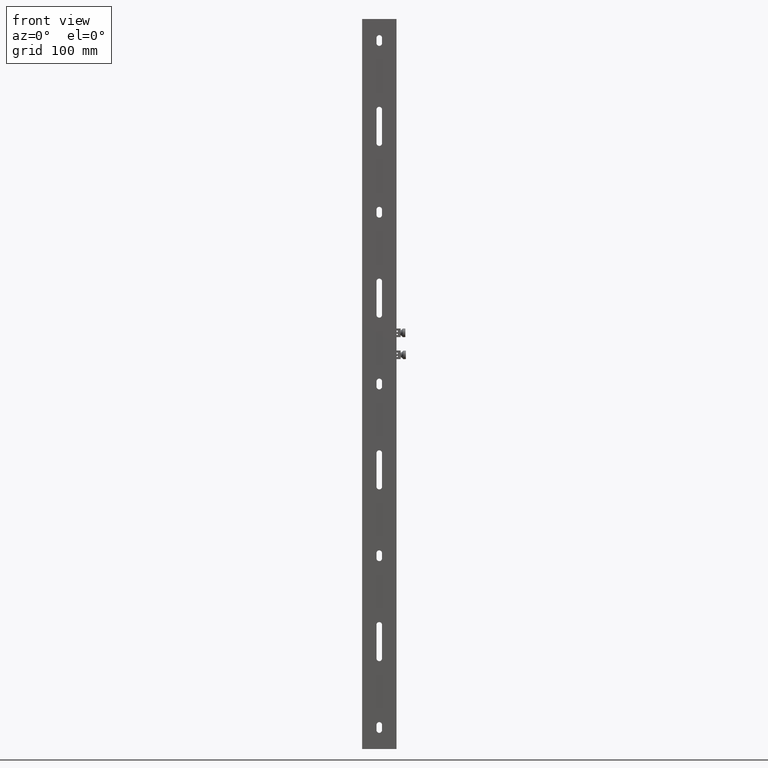
[diagram: clean part render]
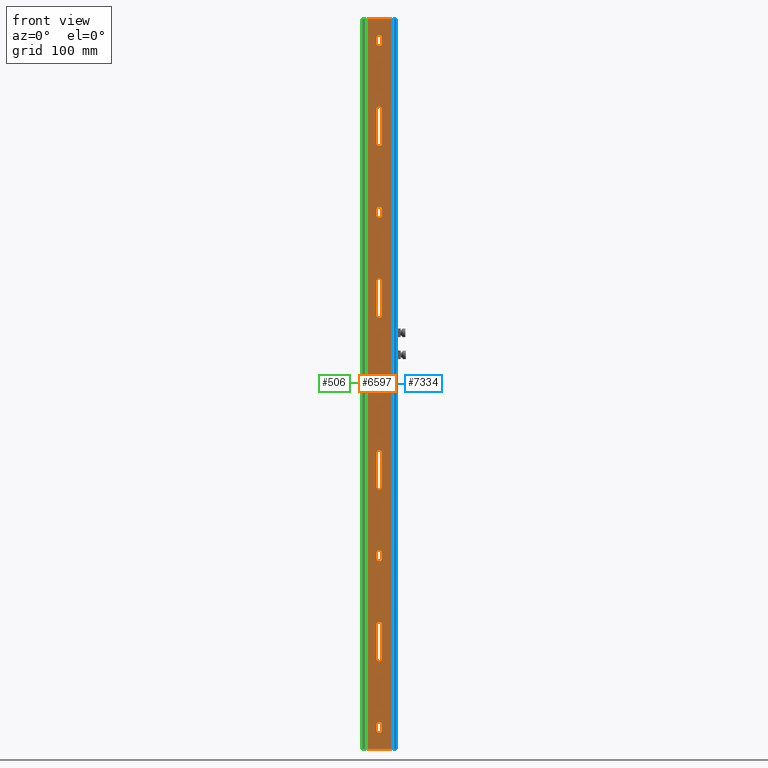
[diagram: same view with three faces highlighted in distinct colors, each labeled with its STEP entity id]
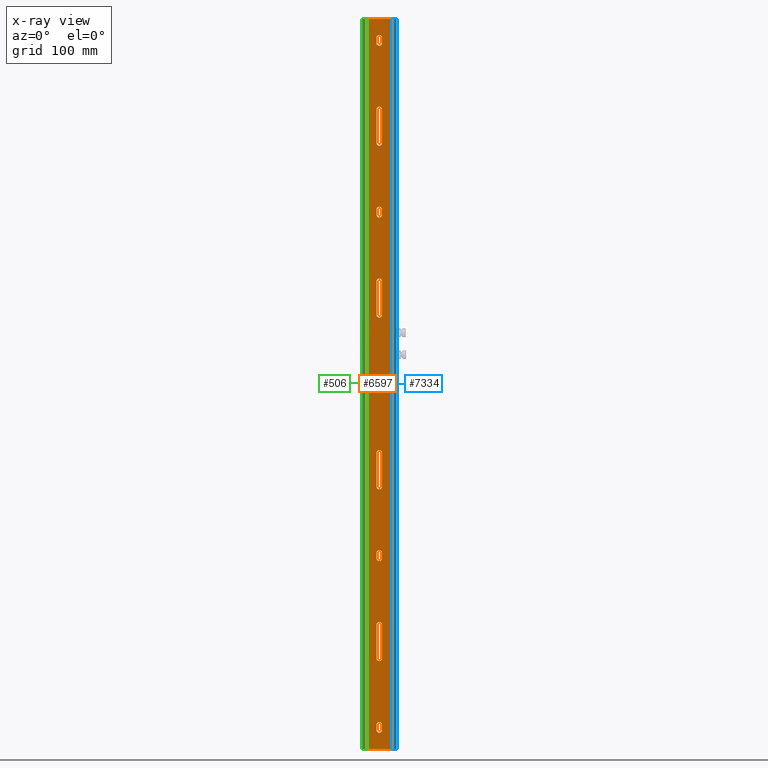
[diagram: x-ray of the same camera — body ghosted, the three highlighted faces saturated]
A machine part, front view with three faces highlighted in distinct colors.
The next image is the same camera in x-ray (body ghosted, the three faces saturated) — at least one of them is partly hidden behind the body in this view.
Their STEP definitions:

[orange] entity #6597 — the highlighted planar face has unit normal (0, -1, 0).
#52 = CARTESIAN_POINT ( 'NONE',  ( 5.510910596163088569E-16, 3.000000000000000000, 5.999999999999996447 ) ) ;
#53 = ORIENTED_EDGE ( 'NONE', *, *, #5482, .F. ) ;
#64 = LINE ( 'NONE', #6114, #5922 ) ;
#102 = DIRECTION ( 'NONE',  ( -1.836970198721027962E-16, -1.000000000000000000, 0.000000000000000000 ) ) ;
#108 = ORIENTED_EDGE ( 'NONE', *, *, #6755, .F. ) ;
#112 = VERTEX_POINT ( 'NONE', #1208 ) ;
#116 = DIRECTION ( 'NONE',  ( -0.000000000000000000, 0.000000000000000000, 1.000000000000000000 ) ) ;
#120 = DIRECTION ( 'NONE',  ( 1.000000000000000000, 0.000000000000000000, 0.000000000000000000 ) ) ;
#180 = EDGE_CURVE ( 'NONE', #2594, #6931, #1267, .T. ) ;
#184 = VERTEX_POINT ( 'NONE', #5951 ) ;
#216 = VERTEX_POINT ( 'NONE', #1248 ) ;
#222 = CARTESIAN_POINT ( 'NONE',  ( 3.249999999999998668, 319.5000000000000000, 5.999999999999996447 ) ) ;
#238 = VERTEX_POINT ( 'NONE', #4727 ) ;
#243 = VERTEX_POINT ( 'NONE', #4689 ) ;
#245 = VECTOR ( 'NONE', #5258, 1000.000000000000000 ) ;
#471 = CARTESIAN_POINT ( 'NONE',  ( -3.250000000000071498, 5.970153145843472579E-16, 5.999999999999996447 ) ) ;
#492 = ORIENTED_EDGE ( 'NONE', *, *, #6791, .T. ) ;
#502 = ORIENTED_EDGE ( 'NONE', *, *, #1505, .F. ) ;
#533 = VERTEX_POINT ( 'NONE', #3122 ) ;
#537 = VERTEX_POINT ( 'NONE', #8474 ) ;
#557 = FACE_BOUND ( 'NONE', #3112, .T. ) ;
#603 = DIRECTION ( 'NONE',  ( -1.836970198721027962E-16, -1.000000000000000000, 0.000000000000000000 ) ) ;
#617 = LINE ( 'NONE', #3301, #2979 ) ;
#635 = EDGE_LOOP ( 'NONE', ( #4002, #7270, #492, #2197 ) ) ;
#638 = DIRECTION ( 'NONE',  ( -1.836970198721027962E-16, -1.000000000000000000, 0.000000000000000000 ) ) ;
#646 = DIRECTION ( 'NONE',  ( 1.000000000000000000, 0.000000000000000000, 0.000000000000000000 ) ) ;
#653 = DIRECTION ( 'NONE',  ( 1.000000000000000000, 0.000000000000000000, 0.000000000000000000 ) ) ;
#668 = CIRCLE ( 'NONE', #2784, 3.249999999999997780 ) ;
#674 = ORIENTED_EDGE ( 'NONE', *, *, #3057, .F. ) ;
#696 = DIRECTION ( 'NONE',  ( -0.000000000000000000, 0.000000000000000000, 1.000000000000000000 ) ) ;
#762 = AXIS2_PLACEMENT_3D ( 'NONE', #5149, #974, #7167 ) ;
#774 = VERTEX_POINT ( 'NONE', #3765 ) ;
#797 = DIRECTION ( 'NONE',  ( -1.836970198721027222E-16, -1.000000000000000000, 0.000000000000000000 ) ) ;
#815 = VECTOR ( 'NONE', #603, 1000.000000000000000 ) ;
#831 = EDGE_CURVE ( 'NONE', #4406, #1709, #668, .T. ) ;
#872 = CARTESIAN_POINT ( 'NONE',  ( -3.250000000000002665, -319.5000000000000000, 5.999999999999996447 ) ) ;
#925 = AXIS2_PLACEMENT_3D ( 'NONE', #8006, #7354, #4555 ) ;
#940 = CARTESIAN_POINT ( 'NONE',  ( -5.510910596163088569E-16, -403.0000000000000000, 5.999999999999996447 ) ) ;
#951 = ORIENTED_EDGE ( 'NONE', *, *, #5408, .F. ) ;
#964 = EDGE_CURVE ( 'NONE', #8024, #4916, #6677, .T. ) ;
#974 = DIRECTION ( 'NONE',  ( -0.000000000000000000, 0.000000000000000000, 1.000000000000000000 ) ) ;
#1005 = CARTESIAN_POINT ( 'NONE',  ( -3.250000000000001332, 80.50000000000001421, 5.999999999999996447 ) ) ;
#1007 = LINE ( 'NONE', #4260, #7865 ) ;
#1024 = CARTESIAN_POINT ( 'NONE',  ( -3.249999999999997335, -397.0000000000000000, 5.999999999999996447 ) ) ;
#1040 = VECTOR ( 'NONE', #5283, 1000.000000000000000 ) ;
#1054 = VECTOR ( 'NONE', #638, 1000.000000000000000 ) ;
#1058 = FACE_BOUND ( 'NONE', #7983, .T. ) ;
#1060 = ORIENTED_EDGE ( 'NONE', *, *, #3414, .T. ) ;
#1083 = VERTEX_POINT ( 'NONE', #5355 ) ;
#1125 = VERTEX_POINT ( 'NONE', #872 ) ;
#1169 = ORIENTED_EDGE ( 'NONE', *, *, #6448, .F. ) ;
#1208 = CARTESIAN_POINT ( 'NONE',  ( 3.249999999999996003, 397.0000000000000000, 5.999999999999996447 ) ) ;
#1222 = DIRECTION ( 'NONE',  ( -0.000000000000000000, 0.000000000000000000, 1.000000000000000000 ) ) ;
#1245 = CARTESIAN_POINT ( 'NONE',  ( 3.249999999999996447, -203.0000000000000000, 5.999999999999996447 ) ) ;
#1248 = CARTESIAN_POINT ( 'NONE',  ( -3.249999999999998224, -403.0000000000000000, 5.999999999999996447 ) ) ;
#1267 = CIRCLE ( 'NONE', #7565, 3.249999999999997780 ) ;
#1317 = CARTESIAN_POINT ( 'NONE',  ( 3.250000000000070166, -5.970153145843469621E-16, 5.999999999999996447 ) ) ;
#1329 = DIRECTION ( 'NONE',  ( -1.000000000000000000, -0.000000000000000000, -0.000000000000000000 ) ) ;
#1341 = CIRCLE ( 'NONE', #925, 3.249999999999997780 ) ;
#1343 = ORIENTED_EDGE ( 'NONE', *, *, #4219, .T. ) ;
#1366 = DIRECTION ( 'NONE',  ( -1.836970198721029934E-16, -1.000000000000000000, 0.000000000000000000 ) ) ;
#1383 = DIRECTION ( 'NONE',  ( -0.000000000000000000, 0.000000000000000000, 1.000000000000000000 ) ) ;
#1459 = DIRECTION ( 'NONE',  ( -0.000000000000000000, 0.000000000000000000, 1.000000000000000000 ) ) ;
#1499 = LINE ( 'NONE', #7426, #7663 ) ;
#1501 = CARTESIAN_POINT ( 'NONE',  ( 3.249999999999998224, -197.0000000000000000, 5.999999999999996447 ) ) ;
#1505 = EDGE_CURVE ( 'NONE', #1663, #1083, #3182, .T. ) ;
#1551 = VERTEX_POINT ( 'NONE', #6921 ) ;
#1557 = DIRECTION ( 'NONE',  ( 1.000000000000000000, 0.000000000000000000, 0.000000000000000000 ) ) ;
#1564 = VERTEX_POINT ( 'NONE', #7527 ) ;
#1565 = CIRCLE ( 'NONE', #7734, 3.249999999999997780 ) ;
#1579 = AXIS2_PLACEMENT_3D ( 'NONE', #6692, #4095, #8653 ) ;
#1658 = CARTESIAN_POINT ( 'NONE',  ( 3.250000000000001332, -80.50000000000001421, 5.999999999999996447 ) ) ;
#1663 = VERTEX_POINT ( 'NONE', #8321 ) ;
#1709 = VERTEX_POINT ( 'NONE', #5495 ) ;
#1711 = CIRCLE ( 'NONE', #4533, 3.249999999999997780 ) ;
#1721 = DIRECTION ( 'NONE',  ( 1.000000000000000000, 0.000000000000000000, 0.000000000000000000 ) ) ;
#1737 = EDGE_CURVE ( 'NONE', #4972, #238, #4351, .T. ) ;
#1755 = FACE_BOUND ( 'NONE', #5077, .T. ) ;
#1759 = EDGE_CURVE ( 'NONE', #537, #4838, #3224, .T. ) ;
#1795 = DIRECTION ( 'NONE',  ( -0.000000000000000000, 0.000000000000000000, 1.000000000000000000 ) ) ;
#1819 = AXIS2_PLACEMENT_3D ( 'NONE', #6122, #116, #8123 ) ;
#1883 = ORIENTED_EDGE ( 'NONE', *, *, #3586, .F. ) ;
#1931 = VERTEX_POINT ( 'NONE', #5166 ) ;
#1942 = LINE ( 'NONE', #6087, #4977 ) ;
#2037 = CIRCLE ( 'NONE', #2171, 3.249999999999997780 ) ;
#2171 = AXIS2_PLACEMENT_3D ( 'NONE', #3668, #8156, #4830 ) ;
#2175 = VERTEX_POINT ( 'NONE', #6308 ) ;
#2184 = EDGE_CURVE ( 'NONE', #7698, #7010, #4782, .T. ) ;
#2197 = ORIENTED_EDGE ( 'NONE', *, *, #2507, .F. ) ;
#2281 = LINE ( 'NONE', #4338, #2969 ) ;
#2341 = LINE ( 'NONE', #3825, #7872 ) ;
#2359 = CARTESIAN_POINT ( 'NONE',  ( 3.249999999999996447, -403.0000000000000000, 5.999999999999996447 ) ) ;
#2363 = ORIENTED_EDGE ( 'NONE', *, *, #1759, .F. ) ;
#2424 = CARTESIAN_POINT ( 'NONE',  ( 3.249999999999996447, -5.970153145843339459E-16, 5.999999999999996447 ) ) ;
#2504 = CARTESIAN_POINT ( 'NONE',  ( -3.249999999999998224, -2.999999999999999556, 5.999999999999996447 ) ) ;
#2507 = EDGE_CURVE ( 'NONE', #6042, #112, #3724, .T. ) ;
#2519 = ORIENTED_EDGE ( 'NONE', *, *, #3192, .F. ) ;
#2546 = DIRECTION ( 'NONE',  ( 0.000000000000000000, -1.000000000000000000, 0.000000000000000000 ) ) ;
#2548 = FACE_BOUND ( 'NONE', #635, .T. ) ;
#2566 = EDGE_CURVE ( 'NONE', #774, #4705, #1341, .T. ) ;
#2571 = DIRECTION ( 'NONE',  ( -0.000000000000000000, 0.000000000000000000, 1.000000000000000000 ) ) ;
#2594 = VERTEX_POINT ( 'NONE', #6699 ) ;
#2597 = FACE_BOUND ( 'NONE', #7355, .T. ) ;
#2654 = DIRECTION ( 'NONE',  ( -1.836970198721027222E-16, -1.000000000000000000, 0.000000000000000000 ) ) ;
#2754 = VERTEX_POINT ( 'NONE', #4357 ) ;
#2784 = AXIS2_PLACEMENT_3D ( 'NONE', #5674, #6336, #7645 ) ;
#2831 = CARTESIAN_POINT ( 'NONE',  ( -14.99999999999999822, 425.0000000000000000, 5.999999999999996447 ) ) ;
#2884 = VERTEX_POINT ( 'NONE', #2504 ) ;
#2920 = DIRECTION ( 'NONE',  ( 1.000000000000000000, 0.000000000000000000, 0.000000000000000000 ) ) ;
#2969 = VECTOR ( 'NONE', #6899, 1000.000000000000000 ) ;
#2979 = VECTOR ( 'NONE', #4722, 1000.000000000000000 ) ;
#3057 = EDGE_CURVE ( 'NONE', #4705, #4972, #1499, .T. ) ;
#3066 = ORIENTED_EDGE ( 'NONE', *, *, #1737, .F. ) ;
#3078 = EDGE_CURVE ( 'NONE', #774, #238, #6783, .T. ) ;
#3112 = EDGE_LOOP ( 'NONE', ( #5344, #6904, #3066, #674 ) ) ;
#3122 = CARTESIAN_POINT ( 'NONE',  ( -3.249999999999996447, -280.5000000000000000, 5.999999999999996447 ) ) ;
#3153 = DIRECTION ( 'NONE',  ( -1.836970198721027962E-16, -1.000000000000000000, 0.000000000000000000 ) ) ;
#3182 = LINE ( 'NONE', #4771, #245 ) ;
#3192 = EDGE_CURVE ( 'NONE', #184, #6023, #8490, .T. ) ;
#3206 = ORIENTED_EDGE ( 'NONE', *, *, #4251, .F. ) ;
#3213 = EDGE_CURVE ( 'NONE', #5431, #5772, #7367, .T. ) ;
#3224 = CIRCLE ( 'NONE', #8142, 3.249999999999997780 ) ;
#3232 = CARTESIAN_POINT ( 'NONE',  ( 15.00000000000000178, 425.0000000000000000, 5.999999999999996447 ) ) ;
#3242 = VECTOR ( 'NONE', #6300, 1000.000000000000000 ) ;
#3253 = AXIS2_PLACEMENT_3D ( 'NONE', #5542, #8209, #6244 ) ;
#3255 = CIRCLE ( 'NONE', #1579, 3.249999999999997780 ) ;
#3260 = CARTESIAN_POINT ( 'NONE',  ( -3.249999999999998224, 397.0000000000000000, 5.999999999999996447 ) ) ;
#3301 = CARTESIAN_POINT ( 'NONE',  ( -3.249999999999961364, 5.970153145843270433E-16, 5.999999999999996447 ) ) ;
#3355 = VERTEX_POINT ( 'NONE', #3232 ) ;
#3410 = LINE ( 'NONE', #7449, #1054 ) ;
#3414 = EDGE_CURVE ( 'NONE', #4406, #6023, #3410, .T. ) ;
#3519 = DIRECTION ( 'NONE',  ( 1.000000000000000000, 0.000000000000000000, 0.000000000000000000 ) ) ;
#3552 = AXIS2_PLACEMENT_3D ( 'NONE', #4524, #1222, #5219 ) ;
#3556 = EDGE_CURVE ( 'NONE', #1551, #2175, #6100, .T. ) ;
#3561 = CARTESIAN_POINT ( 'NONE',  ( -3.249999999999996003, 319.5000000000000000, 5.999999999999996447 ) ) ;
#3572 = LINE ( 'NONE', #4238, #3242 ) ;
#3586 = EDGE_CURVE ( 'NONE', #2884, #2754, #2037, .T. ) ;
#3668 = CARTESIAN_POINT ( 'NONE',  ( -5.510910596163088569E-16, -3.000000000000000000, 5.999999999999996447 ) ) ;
#3683 = DIRECTION ( 'NONE',  ( -1.836970198721027962E-16, -1.000000000000000000, 0.000000000000000000 ) ) ;
#3692 = DIRECTION ( 'NONE',  ( -0.000000000000000000, 0.000000000000000000, 1.000000000000000000 ) ) ;
#3724 = CIRCLE ( 'NONE', #7377, 3.249999999999997780 ) ;
#3761 = CARTESIAN_POINT ( 'NONE',  ( 3.249999999999997335, 3.000000000000000000, 5.999999999999996447 ) ) ;
#3765 = CARTESIAN_POINT ( 'NONE',  ( 3.250000000000000444, 119.5000000000000000, 5.999999999999996447 ) ) ;
#3825 = CARTESIAN_POINT ( 'NONE',  ( 15.00000000000000178, 425.0000000000000000, 5.999999999999996447 ) ) ;
#3833 = ORIENTED_EDGE ( 'NONE', *, *, #964, .T. ) ;
#3848 = VECTOR ( 'NONE', #3153, 1000.000000000000000 ) ;
#3860 = LINE ( 'NONE', #471, #3848 ) ;
#3973 = VERTEX_POINT ( 'NONE', #2831 ) ;
#4002 = ORIENTED_EDGE ( 'NONE', *, *, #4764, .F. ) ;
#4095 = DIRECTION ( 'NONE',  ( -0.000000000000000000, 0.000000000000000000, 1.000000000000000000 ) ) ;
#4109 = EDGE_CURVE ( 'NONE', #6945, #2754, #8393, .T. ) ;
#4128 = ORIENTED_EDGE ( 'NONE', *, *, #831, .F. ) ;
#4205 = EDGE_CURVE ( 'NONE', #1564, #533, #8333, .T. ) ;
#4219 = EDGE_CURVE ( 'NONE', #3355, #3973, #1942, .T. ) ;
#4222 = VECTOR ( 'NONE', #8326, 1000.000000000000000 ) ;
#4238 = CARTESIAN_POINT ( 'NONE',  ( 3.250000000000015099, -5.970153145843374957E-16, 5.999999999999996447 ) ) ;
#4251 = EDGE_CURVE ( 'NONE', #5772, #537, #4721, .T. ) ;
#4260 = CARTESIAN_POINT ( 'NONE',  ( 3.249999999999923173, -5.970153145843199436E-16, 5.999999999999996447 ) ) ;
#4274 = VERTEX_POINT ( 'NONE', #6027 ) ;
#4331 = LINE ( 'NONE', #7015, #6898 ) ;
#4338 = CARTESIAN_POINT ( 'NONE',  ( -3.249999999999924505, 5.970153145843201408E-16, 5.999999999999996447 ) ) ;
#4351 = CIRCLE ( 'NONE', #1819, 3.249999999999997780 ) ;
#4357 = CARTESIAN_POINT ( 'NONE',  ( 3.249999999999996447, -3.000000000000000000, 5.999999999999996447 ) ) ;
#4404 = CARTESIAN_POINT ( 'NONE',  ( -5.510910596163088569E-16, 197.0000000000000000, 5.999999999999996447 ) ) ;
#4406 = VERTEX_POINT ( 'NONE', #1501 ) ;
#4433 = DIRECTION ( 'NONE',  ( 1.000000000000000000, 0.000000000000000000, 0.000000000000000000 ) ) ;
#4441 = FACE_BOUND ( 'NONE', #6081, .T. ) ;
#4494 = DIRECTION ( 'NONE',  ( -0.000000000000000000, 0.000000000000000000, 1.000000000000000000 ) ) ;
#4507 = EDGE_CURVE ( 'NONE', #5431, #4838, #6250, .T. ) ;
#4524 = CARTESIAN_POINT ( 'NONE',  ( 1.795495241083097500E-15, 319.5000000000000000, 5.999999999999996447 ) ) ;
#4533 = AXIS2_PLACEMENT_3D ( 'NONE', #4404, #3692, #3519 ) ;
#4541 = FACE_BOUND ( 'NONE', #7927, .T. ) ;
#4555 = DIRECTION ( 'NONE',  ( 1.000000000000000000, 0.000000000000000000, 0.000000000000000000 ) ) ;
#4580 = PLANE ( 'NONE',  #8317 ) ;
#4596 = CARTESIAN_POINT ( 'NONE',  ( -5.510910596163088569E-16, 397.0000000000000000, 5.999999999999996447 ) ) ;
#4610 = ORIENTED_EDGE ( 'NONE', *, *, #2184, .T. ) ;
#4625 = EDGE_CURVE ( 'NONE', #533, #1125, #5750, .T. ) ;
#4666 = LINE ( 'NONE', #5885, #6523 ) ;
#4688 = ORIENTED_EDGE ( 'NONE', *, *, #4205, .F. ) ;
#4689 = CARTESIAN_POINT ( 'NONE',  ( -3.249999999999997780, 3.000000000000000444, 5.999999999999996447 ) ) ;
#4693 = VERTEX_POINT ( 'NONE', #8642 ) ;
#4697 = ORIENTED_EDGE ( 'NONE', *, *, #180, .F. ) ;
#4701 = ORIENTED_EDGE ( 'NONE', *, *, #5909, .T. ) ;
#4702 = DIRECTION ( 'NONE',  ( -0.000000000000000000, 0.000000000000000000, 1.000000000000000000 ) ) ;
#4705 = VERTEX_POINT ( 'NONE', #7944 ) ;
#4721 = LINE ( 'NONE', #6559, #1040 ) ;
#4722 = DIRECTION ( 'NONE',  ( -1.836970198721027962E-16, -1.000000000000000000, 0.000000000000000000 ) ) ;
#4727 = CARTESIAN_POINT ( 'NONE',  ( 3.249999999999993339, 80.50000000000001421, 5.999999999999996447 ) ) ;
#4758 = CARTESIAN_POINT ( 'NONE',  ( -5.510910596163088569E-16, -203.0000000000000000, 5.999999999999996447 ) ) ;
#4763 = CARTESIAN_POINT ( 'NONE',  ( 15.00000000000000178, -425.0000000000000000, 5.999999999999996447 ) ) ;
#4764 = EDGE_CURVE ( 'NONE', #2175, #6042, #3860, .T. ) ;
#4767 = EDGE_CURVE ( 'NONE', #3973, #4693, #4666, .T. ) ;
#4771 = CARTESIAN_POINT ( 'NONE',  ( -3.250000000000034639, 5.970153145843403554E-16, 5.999999999999996447 ) ) ;
#4782 = LINE ( 'NONE', #5568, #6312 ) ;
#4827 = ORIENTED_EDGE ( 'NONE', *, *, #8616, .T. ) ;
#4830 = DIRECTION ( 'NONE',  ( 1.000000000000000000, 0.000000000000000000, 0.000000000000000000 ) ) ;
#4838 = VERTEX_POINT ( 'NONE', #7419 ) ;
#4843 = VECTOR ( 'NONE', #7648, 1000.000000000000000 ) ;
#4844 = ORIENTED_EDGE ( 'NONE', *, *, #7066, .F. ) ;
#4916 = VERTEX_POINT ( 'NONE', #2359 ) ;
#4933 = CIRCLE ( 'NONE', #7035, 3.249999999999997780 ) ;
#4972 = VERTEX_POINT ( 'NONE', #1005 ) ;
#4977 = VECTOR ( 'NONE', #1329, 1000.000000000000000 ) ;
#5077 = EDGE_LOOP ( 'NONE', ( #502, #53, #4610, #1169 ) ) ;
#5090 = CARTESIAN_POINT ( 'NONE',  ( 5.510910596163088569E-16, -397.0000000000000000, 5.999999999999996447 ) ) ;
#5145 = ORIENTED_EDGE ( 'NONE', *, *, #4109, .T. ) ;
#5149 = CARTESIAN_POINT ( 'NONE',  ( 1.795495241083097500E-15, -280.5000000000000000, 5.999999999999996447 ) ) ;
#5166 = CARTESIAN_POINT ( 'NONE',  ( -3.249999999999994227, -80.50000000000001421, 5.999999999999996447 ) ) ;
#5210 = VECTOR ( 'NONE', #2654, 1000.000000000000000 ) ;
#5211 = EDGE_LOOP ( 'NONE', ( #4688, #4827, #6772, #8531 ) ) ;
#5219 = DIRECTION ( 'NONE',  ( 1.000000000000000000, 0.000000000000000000, 0.000000000000000000 ) ) ;
#5233 = DIRECTION ( 'NONE',  ( 1.000000000000000000, 0.000000000000000000, 0.000000000000000000 ) ) ;
#5258 = DIRECTION ( 'NONE',  ( -1.836970198721027962E-16, -1.000000000000000000, 0.000000000000000000 ) ) ;
#5283 = DIRECTION ( 'NONE',  ( -1.836970198721027222E-16, -1.000000000000000000, 0.000000000000000000 ) ) ;
#5319 = CARTESIAN_POINT ( 'NONE',  ( -5.368688533928914978E-15, 280.5000000000000000, 5.999999999999996447 ) ) ;
#5344 = ORIENTED_EDGE ( 'NONE', *, *, #2566, .F. ) ;
#5345 = CIRCLE ( 'NONE', #5634, 3.249999999999997780 ) ;
#5355 = CARTESIAN_POINT ( 'NONE',  ( -3.249999999999998224, 197.0000000000000000, 5.999999999999996447 ) ) ;
#5377 = DIRECTION ( 'NONE',  ( -0.000000000000000000, 0.000000000000000000, 1.000000000000000000 ) ) ;
#5408 = EDGE_CURVE ( 'NONE', #216, #4916, #4933, .T. ) ;
#5416 = EDGE_CURVE ( 'NONE', #6790, #6931, #3572, .T. ) ;
#5427 = AXIS2_PLACEMENT_3D ( 'NONE', #4758, #1459, #120 ) ;
#5431 = VERTEX_POINT ( 'NONE', #222 ) ;
#5436 = ORIENTED_EDGE ( 'NONE', *, *, #5416, .T. ) ;
#5456 = EDGE_LOOP ( 'NONE', ( #4697, #4844, #5855, #5436 ) ) ;
#5482 = EDGE_CURVE ( 'NONE', #7698, #1663, #8430, .T. ) ;
#5495 = CARTESIAN_POINT ( 'NONE',  ( -3.249999999999997335, -197.0000000000000000, 5.999999999999996447 ) ) ;
#5542 = CARTESIAN_POINT ( 'NONE',  ( 3.582091887506006239E-15, -80.50000000000001421, 5.999999999999996447 ) ) ;
#5543 = EDGE_CURVE ( 'NONE', #6372, #3355, #2341, .T. ) ;
#5568 = CARTESIAN_POINT ( 'NONE',  ( 3.249999999999960032, -5.970153145843267475E-16, 5.999999999999996447 ) ) ;
#5634 = AXIS2_PLACEMENT_3D ( 'NONE', #5090, #6543, #4433 ) ;
#5674 = CARTESIAN_POINT ( 'NONE',  ( 5.510910596163088569E-16, -197.0000000000000000, 5.999999999999996447 ) ) ;
#5685 = EDGE_CURVE ( 'NONE', #1709, #184, #617, .T. ) ;
#5695 = LINE ( 'NONE', #8443, #4222 ) ;
#5707 = ORIENTED_EDGE ( 'NONE', *, *, #8526, .F. ) ;
#5750 = LINE ( 'NONE', #7074, #4843 ) ;
#5772 = VERTEX_POINT ( 'NONE', #3561 ) ;
#5797 = CARTESIAN_POINT ( 'NONE',  ( 3.249999999999993339, -119.5000000000000000, 5.999999999999996447 ) ) ;
#5808 = AXIS2_PLACEMENT_3D ( 'NONE', #7534, #8285, #2920 ) ;
#5814 = CARTESIAN_POINT ( 'NONE',  ( 5.510910596163088569E-16, 203.0000000000000000, 5.999999999999996447 ) ) ;
#5849 = FACE_OUTER_BOUND ( 'NONE', #7541, .T. ) ;
#5855 = ORIENTED_EDGE ( 'NONE', *, *, #7923, .F. ) ;
#5865 = ORIENTED_EDGE ( 'NONE', *, *, #4507, .T. ) ;
#5885 = CARTESIAN_POINT ( 'NONE',  ( -14.99999999999999822, 425.0000000000000000, 5.999999999999996447 ) ) ;
#5909 = EDGE_CURVE ( 'NONE', #4693, #6372, #64, .T. ) ;
#5922 = VECTOR ( 'NONE', #646, 1000.000000000000000 ) ;
#5951 = CARTESIAN_POINT ( 'NONE',  ( -3.249999999999998224, -203.0000000000000000, 5.999999999999996447 ) ) ;
#6001 = LINE ( 'NONE', #8664, #5210 ) ;
#6023 = VERTEX_POINT ( 'NONE', #1245 ) ;
#6026 = ORIENTED_EDGE ( 'NONE', *, *, #6872, .F. ) ;
#6027 = CARTESIAN_POINT ( 'NONE',  ( 3.249999999999991562, -319.5000000000000000, 5.999999999999996447 ) ) ;
#6042 = VERTEX_POINT ( 'NONE', #3260 ) ;
#6081 = EDGE_LOOP ( 'NONE', ( #5707, #5145, #1883, #7000 ) ) ;
#6087 = CARTESIAN_POINT ( 'NONE',  ( -14.99999999999999822, 425.0000000000000000, 5.999999999999996447 ) ) ;
#6099 = DIRECTION ( 'NONE',  ( 1.000000000000000000, 0.000000000000000000, 0.000000000000000000 ) ) ;
#6100 = CIRCLE ( 'NONE', #5808, 3.249999999999997780 ) ;
#6114 = CARTESIAN_POINT ( 'NONE',  ( -14.99999999999999822, -425.0000000000000000, 5.999999999999996447 ) ) ;
#6122 = CARTESIAN_POINT ( 'NONE',  ( -3.582091887506006239E-15, 80.50000000000001421, 5.999999999999996447 ) ) ;
#6126 = CARTESIAN_POINT ( 'NONE',  ( 3.249999999999978240, -5.970153145843306918E-16, 5.999999999999996447 ) ) ;
#6144 = ORIENTED_EDGE ( 'NONE', *, *, #3213, .F. ) ;
#6244 = DIRECTION ( 'NONE',  ( 1.000000000000000000, 0.000000000000000000, 0.000000000000000000 ) ) ;
#6250 = LINE ( 'NONE', #6824, #8470 ) ;
#6300 = DIRECTION ( 'NONE',  ( -1.836970198721029934E-16, -1.000000000000000000, 0.000000000000000000 ) ) ;
#6308 = CARTESIAN_POINT ( 'NONE',  ( -3.249999999999997335, 403.0000000000000000, 5.999999999999996447 ) ) ;
#6312 = VECTOR ( 'NONE', #102, 1000.000000000000000 ) ;
#6317 = EDGE_CURVE ( 'NONE', #1125, #4274, #3255, .T. ) ;
#6336 = DIRECTION ( 'NONE',  ( -0.000000000000000000, 0.000000000000000000, 1.000000000000000000 ) ) ;
#6372 = VERTEX_POINT ( 'NONE', #4763 ) ;
#6427 = DIRECTION ( 'NONE',  ( -1.836970198721029441E-16, -1.000000000000000000, 0.000000000000000000 ) ) ;
#6448 = EDGE_CURVE ( 'NONE', #1083, #7010, #1711, .T. ) ;
#6487 = CIRCLE ( 'NONE', #3253, 3.249999999999997780 ) ;
#6523 = VECTOR ( 'NONE', #2546, 1000.000000000000000 ) ;
#6543 = DIRECTION ( 'NONE',  ( -0.000000000000000000, 0.000000000000000000, 1.000000000000000000 ) ) ;
#6552 = FACE_BOUND ( 'NONE', #5456, .T. ) ;
#6559 = CARTESIAN_POINT ( 'NONE',  ( -3.250000000000055067, 5.970153145843440038E-16, 5.999999999999996447 ) ) ;
#6597 = ADVANCED_FACE ( 'NONE', ( #2548, #1755, #2597, #1058, #6552, #557, #4541, #8469, #5849, #4441 ), #4580, .T. ) ;
#6677 = LINE ( 'NONE', #1317, #815 ) ;
#6692 = CARTESIAN_POINT ( 'NONE',  ( -5.368688533928914978E-15, -319.5000000000000000, 5.999999999999996447 ) ) ;
#6699 = CARTESIAN_POINT ( 'NONE',  ( -3.250000000000001332, -119.5000000000000000, 5.999999999999996447 ) ) ;
#6741 = CARTESIAN_POINT ( 'NONE',  ( -3.582091887506006239E-15, -119.5000000000000000, 5.999999999999996447 ) ) ;
#6755 = EDGE_CURVE ( 'NONE', #7424, #216, #2281, .T. ) ;
#6772 = ORIENTED_EDGE ( 'NONE', *, *, #6317, .F. ) ;
#6783 = LINE ( 'NONE', #6126, #8083 ) ;
#6790 = VERTEX_POINT ( 'NONE', #1658 ) ;
#6791 = EDGE_CURVE ( 'NONE', #1551, #112, #1007, .T. ) ;
#6822 = DIRECTION ( 'NONE',  ( -1.836970198721029934E-16, -1.000000000000000000, 0.000000000000000000 ) ) ;
#6824 = CARTESIAN_POINT ( 'NONE',  ( 3.249999999999939604, -5.970153145843228032E-16, 5.999999999999996447 ) ) ;
#6872 = EDGE_CURVE ( 'NONE', #8024, #7424, #5345, .T. ) ;
#6898 = VECTOR ( 'NONE', #8240, 1000.000000000000000 ) ;
#6899 = DIRECTION ( 'NONE',  ( -1.836970198721027962E-16, -1.000000000000000000, 0.000000000000000000 ) ) ;
#6904 = ORIENTED_EDGE ( 'NONE', *, *, #3078, .T. ) ;
#6921 = CARTESIAN_POINT ( 'NONE',  ( 3.249999999999997335, 403.0000000000000000, 5.999999999999996447 ) ) ;
#6931 = VERTEX_POINT ( 'NONE', #5797 ) ;
#6941 = ORIENTED_EDGE ( 'NONE', *, *, #5685, .F. ) ;
#6945 = VERTEX_POINT ( 'NONE', #3761 ) ;
#7000 = ORIENTED_EDGE ( 'NONE', *, *, #8399, .F. ) ;
#7010 = VERTEX_POINT ( 'NONE', #8675 ) ;
#7015 = CARTESIAN_POINT ( 'NONE',  ( -3.249999999999998224, 5.970153145843342417E-16, 5.999999999999996447 ) ) ;
#7035 = AXIS2_PLACEMENT_3D ( 'NONE', #940, #4702, #1557 ) ;
#7066 = EDGE_CURVE ( 'NONE', #1931, #2594, #5695, .T. ) ;
#7074 = CARTESIAN_POINT ( 'NONE',  ( -3.249999999999944933, 5.970153145843236907E-16, 5.999999999999996447 ) ) ;
#7167 = DIRECTION ( 'NONE',  ( 1.000000000000000000, 0.000000000000000000, 0.000000000000000000 ) ) ;
#7270 = ORIENTED_EDGE ( 'NONE', *, *, #3556, .F. ) ;
#7354 = DIRECTION ( 'NONE',  ( -0.000000000000000000, 0.000000000000000000, 1.000000000000000000 ) ) ;
#7355 = EDGE_LOOP ( 'NONE', ( #951, #108, #6026, #3833 ) ) ;
#7367 = CIRCLE ( 'NONE', #3552, 3.249999999999997780 ) ;
#7377 = AXIS2_PLACEMENT_3D ( 'NONE', #4596, #2571, #8657 ) ;
#7419 = CARTESIAN_POINT ( 'NONE',  ( 3.249999999999991118, 280.5000000000000000, 5.999999999999996447 ) ) ;
#7424 = VERTEX_POINT ( 'NONE', #1024 ) ;
#7426 = CARTESIAN_POINT ( 'NONE',  ( -3.250000000000016431, 5.970153145843376929E-16, 5.999999999999996447 ) ) ;
#7449 = CARTESIAN_POINT ( 'NONE',  ( 3.250000000000033307, -5.970153145843401581E-16, 5.999999999999996447 ) ) ;
#7527 = CARTESIAN_POINT ( 'NONE',  ( 3.249999999999998668, -280.5000000000000000, 5.999999999999996447 ) ) ;
#7534 = CARTESIAN_POINT ( 'NONE',  ( 5.510910596163088569E-16, 403.0000000000000000, 5.999999999999996447 ) ) ;
#7541 = EDGE_LOOP ( 'NONE', ( #7763, #1343, #8186, #4701 ) ) ;
#7565 = AXIS2_PLACEMENT_3D ( 'NONE', #6741, #5377, #8095 ) ;
#7645 = DIRECTION ( 'NONE',  ( 1.000000000000000000, 0.000000000000000000, 0.000000000000000000 ) ) ;
#7648 = DIRECTION ( 'NONE',  ( -1.836970198721027222E-16, -1.000000000000000000, 0.000000000000000000 ) ) ;
#7663 = VECTOR ( 'NONE', #1366, 1000.000000000000000 ) ;
#7698 = VERTEX_POINT ( 'NONE', #8082 ) ;
#7734 = AXIS2_PLACEMENT_3D ( 'NONE', #52, #1383, #6099 ) ;
#7763 = ORIENTED_EDGE ( 'NONE', *, *, #5543, .T. ) ;
#7765 = VECTOR ( 'NONE', #6427, 1000.000000000000000 ) ;
#7803 = CARTESIAN_POINT ( 'NONE',  ( 3.249999999999998224, -397.0000000000000000, 5.999999999999996447 ) ) ;
#7865 = VECTOR ( 'NONE', #3683, 1000.000000000000000 ) ;
#7872 = VECTOR ( 'NONE', #8440, 1000.000000000000000 ) ;
#7923 = EDGE_CURVE ( 'NONE', #6790, #1931, #6487, .T. ) ;
#7927 = EDGE_LOOP ( 'NONE', ( #3206, #6144, #5865, #2363 ) ) ;
#7944 = CARTESIAN_POINT ( 'NONE',  ( -3.249999999999994227, 119.5000000000000000, 5.999999999999996447 ) ) ;
#7983 = EDGE_LOOP ( 'NONE', ( #2519, #6941, #4128, #1060 ) ) ;
#8006 = CARTESIAN_POINT ( 'NONE',  ( 3.582091887506006239E-15, 119.5000000000000000, 5.999999999999996447 ) ) ;
#8024 = VERTEX_POINT ( 'NONE', #7803 ) ;
#8082 = CARTESIAN_POINT ( 'NONE',  ( 3.249999999999998224, 203.0000000000000000, 5.999999999999996447 ) ) ;
#8083 = VECTOR ( 'NONE', #6822, 1000.000000000000000 ) ;
#8095 = DIRECTION ( 'NONE',  ( 1.000000000000000000, 0.000000000000000000, 0.000000000000000000 ) ) ;
#8123 = DIRECTION ( 'NONE',  ( 1.000000000000000000, 0.000000000000000000, 0.000000000000000000 ) ) ;
#8142 = AXIS2_PLACEMENT_3D ( 'NONE', #5319, #696, #653 ) ;
#8156 = DIRECTION ( 'NONE',  ( -0.000000000000000000, 0.000000000000000000, 1.000000000000000000 ) ) ;
#8186 = ORIENTED_EDGE ( 'NONE', *, *, #4767, .T. ) ;
#8209 = DIRECTION ( 'NONE',  ( -0.000000000000000000, 0.000000000000000000, 1.000000000000000000 ) ) ;
#8240 = DIRECTION ( 'NONE',  ( -1.836970198721029441E-16, -1.000000000000000000, 0.000000000000000000 ) ) ;
#8285 = DIRECTION ( 'NONE',  ( -0.000000000000000000, 0.000000000000000000, 1.000000000000000000 ) ) ;
#8295 = AXIS2_PLACEMENT_3D ( 'NONE', #5814, #4494, #1721 ) ;
#8317 = AXIS2_PLACEMENT_3D ( 'NONE', #8601, #1795, #5233 ) ;
#8321 = CARTESIAN_POINT ( 'NONE',  ( -3.249999999999997335, 203.0000000000000000, 5.999999999999996447 ) ) ;
#8326 = DIRECTION ( 'NONE',  ( -1.836970198721029934E-16, -1.000000000000000000, 0.000000000000000000 ) ) ;
#8333 = CIRCLE ( 'NONE', #762, 3.249999999999997780 ) ;
#8393 = LINE ( 'NONE', #2424, #7765 ) ;
#8399 = EDGE_CURVE ( 'NONE', #243, #2884, #4331, .T. ) ;
#8430 = CIRCLE ( 'NONE', #8295, 3.249999999999997780 ) ;
#8440 = DIRECTION ( 'NONE',  ( -0.000000000000000000, 1.000000000000000000, -0.000000000000000000 ) ) ;
#8443 = CARTESIAN_POINT ( 'NONE',  ( -3.249999999999979572, 5.970153145843309876E-16, 5.999999999999996447 ) ) ;
#8469 = FACE_BOUND ( 'NONE', #5211, .T. ) ;
#8470 = VECTOR ( 'NONE', #797, 1000.000000000000000 ) ;
#8474 = CARTESIAN_POINT ( 'NONE',  ( -3.250000000000002665, 280.5000000000000000, 5.999999999999996447 ) ) ;
#8490 = CIRCLE ( 'NONE', #5427, 3.249999999999997780 ) ;
#8526 = EDGE_CURVE ( 'NONE', #6945, #243, #1565, .T. ) ;
#8531 = ORIENTED_EDGE ( 'NONE', *, *, #4625, .F. ) ;
#8601 = CARTESIAN_POINT ( 'NONE',  ( 0.000000000000000000, 0.000000000000000000, 5.999999999999996447 ) ) ;
#8616 = EDGE_CURVE ( 'NONE', #1564, #4274, #6001, .T. ) ;
#8642 = CARTESIAN_POINT ( 'NONE',  ( -14.99999999999999822, -425.0000000000000000, 5.999999999999998224 ) ) ;
#8653 = DIRECTION ( 'NONE',  ( 1.000000000000000000, 0.000000000000000000, 0.000000000000000000 ) ) ;
#8657 = DIRECTION ( 'NONE',  ( 1.000000000000000000, 0.000000000000000000, 0.000000000000000000 ) ) ;
#8664 = CARTESIAN_POINT ( 'NONE',  ( 3.250000000000049738, -5.970153145843430178E-16, 5.999999999999996447 ) ) ;
#8675 = CARTESIAN_POINT ( 'NONE',  ( 3.249999999999996447, 197.0000000000000000, 5.999999999999996447 ) ) ;

[blue] entity #7334 — the highlighted planar face has unit normal (-0, 1, 0).
#89 = EDGE_CURVE ( 'NONE', #7690, #6798, #7131, .T. ) ;
#126 = PLANE ( 'NONE',  #4660 ) ;
#689 = VECTOR ( 'NONE', #3339, 1000.000000000000000 ) ;
#727 = EDGE_CURVE ( 'NONE', #7197, #7690, #6082, .T. ) ;
#763 = DIRECTION ( 'NONE',  ( -1.000000000000000000, 0.000000000000000000, 1.301042606982605321E-16 ) ) ;
#937 = CARTESIAN_POINT ( 'NONE',  ( -19.99999999999999645, -425.0000000000000000, 6.499999999999999112 ) ) ;
#1202 = CARTESIAN_POINT ( 'NONE',  ( 20.00000000000000355, 425.0000000000000000, 6.499999999999993783 ) ) ;
#1207 = VERTEX_POINT ( 'NONE', #2852 ) ;
#1493 = CARTESIAN_POINT ( 'NONE',  ( 15.00000000000000178, 425.0000000000000000, 6.499999999999996447 ) ) ;
#1753 = ORIENTED_EDGE ( 'NONE', *, *, #89, .F. ) ;
#1785 = ORIENTED_EDGE ( 'NONE', *, *, #5530, .F. ) ;
#2472 = DIRECTION ( 'NONE',  ( -0.000000000000000000, -1.000000000000000000, -0.000000000000000000 ) ) ;
#2520 = VECTOR ( 'NONE', #7877, 1000.000000000000000 ) ;
#2696 = EDGE_CURVE ( 'NONE', #7197, #1207, #8269, .T. ) ;
#2852 = CARTESIAN_POINT ( 'NONE',  ( 20.00000000000000355, -425.0000000000000000, 6.499999999999993783 ) ) ;
#3111 = VECTOR ( 'NONE', #2472, 1000.000000000000000 ) ;
#3130 = CARTESIAN_POINT ( 'NONE',  ( -19.99999999999999645, 425.0000000000000000, 6.499999999999999112 ) ) ;
#3156 = VECTOR ( 'NONE', #6793, 1000.000000000000000 ) ;
#3339 = DIRECTION ( 'NONE',  ( -0.000000000000000000, 1.000000000000000000, -0.000000000000000000 ) ) ;
#4144 = DIRECTION ( 'NONE',  ( -1.301042606982605321E-16, 0.000000000000000000, -1.000000000000000000 ) ) ;
#4660 = AXIS2_PLACEMENT_3D ( 'NONE', #8185, #4144, #763 ) ;
#5183 = CARTESIAN_POINT ( 'NONE',  ( 15.00000000000000178, 425.0000000000000000, 6.499999999999996447 ) ) ;
#5530 = EDGE_CURVE ( 'NONE', #6798, #1207, #6561, .T. ) ;
#6082 = LINE ( 'NONE', #5183, #689 ) ;
#6170 = FACE_OUTER_BOUND ( 'NONE', #7160, .T. ) ;
#6377 = CARTESIAN_POINT ( 'NONE',  ( 20.00000000000000355, 425.0000000000000000, 6.499999999999993783 ) ) ;
#6561 = LINE ( 'NONE', #1202, #3111 ) ;
#6793 = DIRECTION ( 'NONE',  ( 1.000000000000000000, 0.000000000000000000, -1.301042606982605321E-16 ) ) ;
#6798 = VERTEX_POINT ( 'NONE', #6377 ) ;
#6949 = ORIENTED_EDGE ( 'NONE', *, *, #727, .F. ) ;
#7131 = LINE ( 'NONE', #3130, #2520 ) ;
#7160 = EDGE_LOOP ( 'NONE', ( #1753, #6949, #7822, #1785 ) ) ;
#7171 = CARTESIAN_POINT ( 'NONE',  ( 15.00000000000000178, -425.0000000000000000, 6.499999999999996447 ) ) ;
#7197 = VERTEX_POINT ( 'NONE', #7171 ) ;
#7334 = ADVANCED_FACE ( 'NONE', ( #6170 ), #126, .F. ) ;
#7690 = VERTEX_POINT ( 'NONE', #1493 ) ;
#7822 = ORIENTED_EDGE ( 'NONE', *, *, #2696, .T. ) ;
#7877 = DIRECTION ( 'NONE',  ( 1.000000000000000000, 0.000000000000000000, -1.301042606982605321E-16 ) ) ;
#8185 = CARTESIAN_POINT ( 'NONE',  ( -19.99999999999999645, 425.0000000000000000, 6.499999999999999112 ) ) ;
#8269 = LINE ( 'NONE', #937, #3156 ) ;

[green] entity #506 — the highlighted planar face has unit normal (-0, 1, 0).
#59 = VERTEX_POINT ( 'NONE', #1863 ) ;
#77 = CARTESIAN_POINT ( 'NONE',  ( -19.99999999999999645, 425.0000000000000000, 6.499999999999999112 ) ) ;
#432 = FACE_OUTER_BOUND ( 'NONE', #6896, .T. ) ;
#506 = ADVANCED_FACE ( 'NONE', ( #432 ), #4444, .F. ) ;
#897 = CARTESIAN_POINT ( 'NONE',  ( -19.99999999999999645, 425.0000000000000000, 6.499999999999999112 ) ) ;
#1398 = DIRECTION ( 'NONE',  ( 1.000000000000000000, 0.000000000000000000, -1.301042606982605321E-16 ) ) ;
#1629 = LINE ( 'NONE', #4445, #3028 ) ;
#1769 = EDGE_CURVE ( 'NONE', #2789, #59, #3426, .T. ) ;
#1863 = CARTESIAN_POINT ( 'NONE',  ( -14.99999999999999822, 425.0000000000000000, 6.499999999999996447 ) ) ;
#1908 = LINE ( 'NONE', #897, #3839 ) ;
#2301 = DIRECTION ( 'NONE',  ( -0.000000000000000000, -1.000000000000000000, -0.000000000000000000 ) ) ;
#2789 = VERTEX_POINT ( 'NONE', #2959 ) ;
#2794 = EDGE_CURVE ( 'NONE', #59, #8118, #1629, .T. ) ;
#2856 = CARTESIAN_POINT ( 'NONE',  ( -19.99999999999999645, -425.0000000000000000, 6.499999999999999112 ) ) ;
#2951 = VECTOR ( 'NONE', #6159, 1000.000000000000000 ) ;
#2959 = CARTESIAN_POINT ( 'NONE',  ( -19.99999999999999645, 425.0000000000000000, 6.499999999999999112 ) ) ;
#3028 = VECTOR ( 'NONE', #7120, 1000.000000000000000 ) ;
#3065 = CARTESIAN_POINT ( 'NONE',  ( -14.99999999999999822, -425.0000000000000000, 6.499999999999996447 ) ) ;
#3426 = LINE ( 'NONE', #77, #2951 ) ;
#3653 = DIRECTION ( 'NONE',  ( -1.301042606982605321E-16, 0.000000000000000000, -1.000000000000000000 ) ) ;
#3734 = CARTESIAN_POINT ( 'NONE',  ( -19.99999999999999645, 425.0000000000000000, 6.499999999999999112 ) ) ;
#3820 = DIRECTION ( 'NONE',  ( -1.000000000000000000, 0.000000000000000000, 1.301042606982605321E-16 ) ) ;
#3839 = VECTOR ( 'NONE', #2301, 1000.000000000000000 ) ;
#3852 = EDGE_CURVE ( 'NONE', #2789, #7906, #1908, .T. ) ;
#4315 = ORIENTED_EDGE ( 'NONE', *, *, #1769, .F. ) ;
#4444 = PLANE ( 'NONE',  #7571 ) ;
#4445 = CARTESIAN_POINT ( 'NONE',  ( -14.99999999999999822, 425.0000000000000000, 6.499999999999996447 ) ) ;
#5605 = ORIENTED_EDGE ( 'NONE', *, *, #3852, .T. ) ;
#5949 = EDGE_CURVE ( 'NONE', #7906, #8118, #8076, .T. ) ;
#6159 = DIRECTION ( 'NONE',  ( 1.000000000000000000, 0.000000000000000000, -1.301042606982605321E-16 ) ) ;
#6587 = ORIENTED_EDGE ( 'NONE', *, *, #5949, .T. ) ;
#6896 = EDGE_LOOP ( 'NONE', ( #6587, #8302, #4315, #5605 ) ) ;
#7120 = DIRECTION ( 'NONE',  ( 0.000000000000000000, -1.000000000000000000, 0.000000000000000000 ) ) ;
#7461 = CARTESIAN_POINT ( 'NONE',  ( -19.99999999999999645, -425.0000000000000000, 6.499999999999999112 ) ) ;
#7571 = AXIS2_PLACEMENT_3D ( 'NONE', #3734, #3653, #3820 ) ;
#7906 = VERTEX_POINT ( 'NONE', #2856 ) ;
#8076 = LINE ( 'NONE', #7461, #8166 ) ;
#8118 = VERTEX_POINT ( 'NONE', #3065 ) ;
#8166 = VECTOR ( 'NONE', #1398, 1000.000000000000000 ) ;
#8302 = ORIENTED_EDGE ( 'NONE', *, *, #2794, .F. ) ;